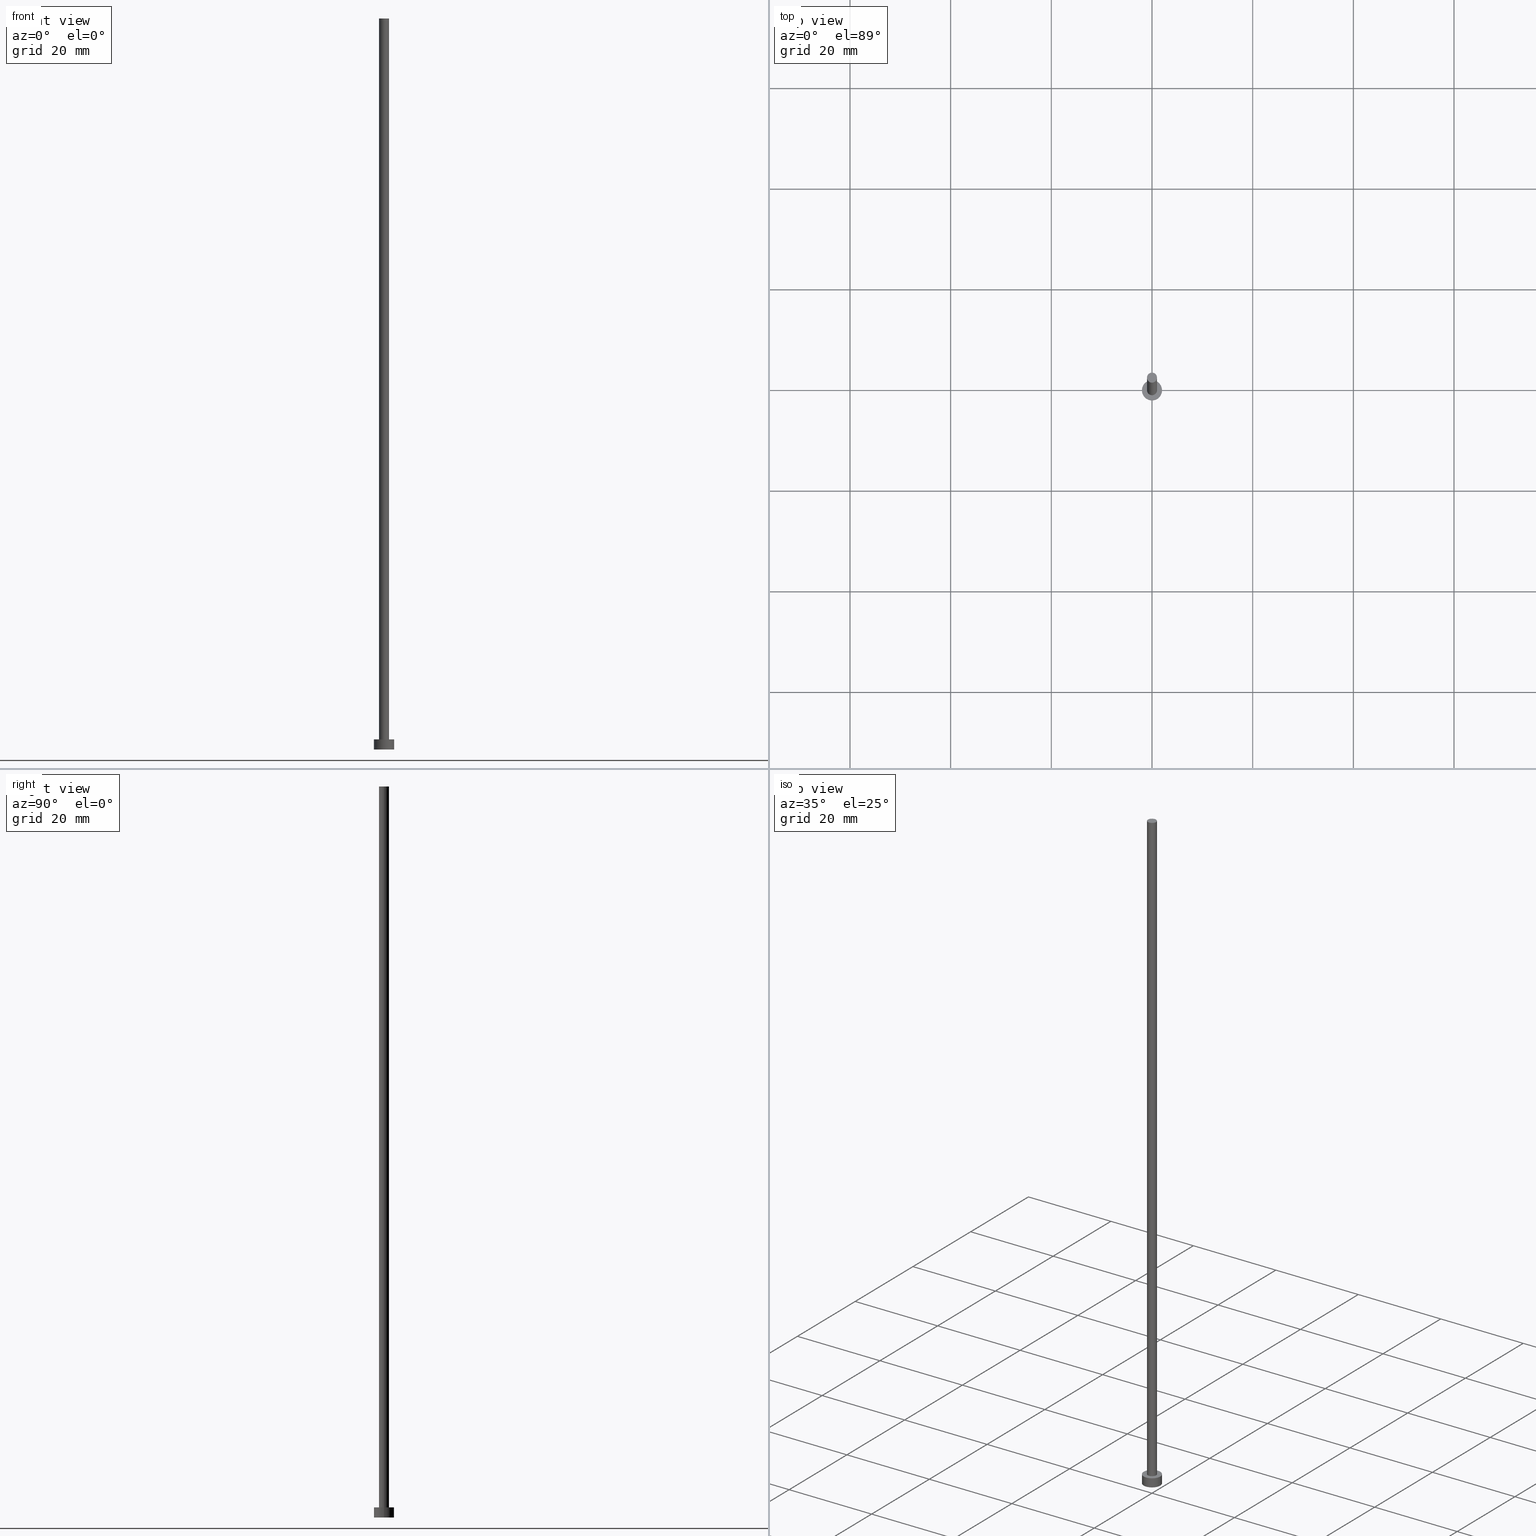
[diagram: canonical four-view strip — front | top / right | iso, engineering-drawing reading convention]
A machine part, canonical four-view strip (front | top / right | iso — engineering-drawing reading convention). The complete STEP part file that produces these views, byte-faithful:
ISO-10303-21;
HEADER;
FILE_DESCRIPTION (( 'STEP AP203' ),
    '1' );
FILE_NAME ('8f4c.STEP',
    '2023-09-27T12:17:00',
    ( '' ),
    ( '' ),
    'SwSTEP 2.0',
    'SolidWorks 2019',
    '' );
FILE_SCHEMA (( 'CONFIG_CONTROL_DESIGN' ));
ENDSEC;

DATA;
#1 = CARTESIAN_POINT ( 'NONE',  ( 0.000000000000000000, 0.000000000000000000, 2.000000000000000000 ) ) ;
#2 = LINE ( 'NONE', #73, #8 ) ;
#3 = COORDINATED_UNIVERSAL_TIME_OFFSET ( 1, 0, .AHEAD. ) ;
#4 =( NAMED_UNIT ( * ) PLANE_ANGLE_UNIT ( ) SI_UNIT ( $, .RADIAN. ) );
#5 = VERTEX_POINT ( 'NONE', #41 ) ;
#6 = COORDINATED_UNIVERSAL_TIME_OFFSET ( 1, 0, .AHEAD. ) ;
#7 = DIRECTION ( 'NONE',  ( 1.000000000000000000, 0.000000000000000000, 0.000000000000000000 ) ) ;
#8 = VECTOR ( 'NONE', #91, 1000.000000000000000 ) ;
#9 = EDGE_LOOP ( 'NONE', ( #39, #111, #224, #11 ) ) ;
#10 = PERSON_AND_ORGANIZATION ( #196, #238 ) ;
#11 = ORIENTED_EDGE ( 'NONE', *, *, #109, .T. ) ;
#12 = VERTEX_POINT ( 'NONE', #102 ) ;
#13 = ADVANCED_FACE ( 'NONE', ( #180 ), #167, .T. ) ;
#14 = DIRECTION ( 'NONE',  ( 0.000000000000000000, 0.000000000000000000, 1.000000000000000000 ) ) ;
#15 = CC_DESIGN_PERSON_AND_ORGANIZATION_ASSIGNMENT ( #63, #229, ( #199 ) ) ;
#16 = AXIS2_PLACEMENT_3D ( 'NONE', #127, #234, #34 ) ;
#17 = CC_DESIGN_PERSON_AND_ORGANIZATION_ASSIGNMENT ( #225, #40, ( #37 ) ) ;
#18 = CIRCLE ( 'NONE', #16, 2.000000000000000000 ) ;
#19 = CC_DESIGN_PERSON_AND_ORGANIZATION_ASSIGNMENT ( #115, #182, ( #87 ) ) ;
#20 = PLANE ( 'NONE',  #32 ) ;
#21 = ORIENTED_EDGE ( 'NONE', *, *, #216, .F. ) ;
#22 = CARTESIAN_POINT ( 'NONE',  ( -2.000000000000000000, 0.000000000000000000, 2.000000000000000000 ) ) ;
#23 = APPROVAL_STATUS ( 'not_yet_approved' ) ;
#24 = VERTEX_POINT ( 'NONE', #183 ) ;
#25 = PRODUCT_RELATED_PRODUCT_CATEGORY ( 'detail', '', ( #87 ) ) ;
#26 = DATE_AND_TIME ( #204, #66 ) ;
#27 = DIRECTION ( 'NONE',  ( 1.000000000000000000, 0.000000000000000000, 0.000000000000000000 ) ) ;
#28 = DIRECTION ( 'NONE',  ( 1.000000000000000000, 0.000000000000000000, 0.000000000000000000 ) ) ;
#29 = ORIENTED_EDGE ( 'NONE', *, *, #216, .T. ) ;
#30 = DIRECTION ( 'NONE',  ( 0.000000000000000000, 0.000000000000000000, 1.000000000000000000 ) ) ;
#31 = AXIS2_PLACEMENT_3D ( 'NONE', #165, #124, #67 ) ;
#32 = AXIS2_PLACEMENT_3D ( 'NONE', #96, #70, #79 ) ;
#33 = DIRECTION ( 'NONE',  ( 1.000000000000000000, 0.000000000000000000, 0.000000000000000000 ) ) ;
#34 = DIRECTION ( 'NONE',  ( 1.000000000000000000, 0.000000000000000000, 0.000000000000000000 ) ) ;
#35 = CYLINDRICAL_SURFACE ( 'NONE', #178, 2.000000000000000000 ) ;
#36 =( GEOMETRIC_REPRESENTATION_CONTEXT ( 3 ) GLOBAL_UNCERTAINTY_ASSIGNED_CONTEXT ( ( #200 ) ) GLOBAL_UNIT_ASSIGNED_CONTEXT ( ( #158, #4, #60 ) ) REPRESENTATION_CONTEXT ( 'NONE', 'WORKASPACE' ) );
#37 = PRODUCT_DEFINITION_FORMATION_WITH_SPECIFIED_SOURCE ( 'LIBOVOLN�', '', #87, .NOT_KNOWN. ) ;
#38 = CALENDAR_DATE ( 2023, 27, 9 ) ;
#39 = ORIENTED_EDGE ( 'NONE', *, *, #140, .F. ) ;
#40 = PERSON_AND_ORGANIZATION_ROLE ( 'design_supplier' ) ;
#41 = CARTESIAN_POINT ( 'NONE',  ( 1.000000000000000000, 1.224646799147352961E-16, 2.000000000000000000 ) ) ;
#42 = APPLICATION_PROTOCOL_DEFINITION ( 'international standard', 'config_control_design', 1994, #208 ) ;
#43 = ORIENTED_EDGE ( 'NONE', *, *, #56, .T. ) ;
#44 = COORDINATED_UNIVERSAL_TIME_OFFSET ( 1, 0, .AHEAD. ) ;
#45 = EDGE_LOOP ( 'NONE', ( #217, #248 ) ) ;
#46 = AXIS2_PLACEMENT_3D ( 'NONE', #231, #205, #188 ) ;
#47 = CARTESIAN_POINT ( 'NONE',  ( 0.000000000000000000, 0.000000000000000000, 145.1999999999999886 ) ) ;
#48 = CARTESIAN_POINT ( 'NONE',  ( 0.000000000000000000, 0.000000000000000000, 2.000000000000000000 ) ) ;
#49 = CIRCLE ( 'NONE', #65, 1.000000000000000000 ) ;
#50 = AXIS2_PLACEMENT_3D ( 'NONE', #241, #141, #28 ) ;
#51 = CARTESIAN_POINT ( 'NONE',  ( 0.000000000000000000, 0.000000000000000000, 0.000000000000000000 ) ) ;
#52 = CC_DESIGN_PERSON_AND_ORGANIZATION_ASSIGNMENT ( #179, #54, ( #189 ) ) ;
#53 = AXIS2_PLACEMENT_3D ( 'NONE', #246, #142, #228 ) ;
#54 = PERSON_AND_ORGANIZATION_ROLE ( 'creator' ) ;
#55 = ORIENTED_EDGE ( 'NONE', *, *, #152, .T. ) ;
#56 = EDGE_CURVE ( 'NONE', #24, #72, #191, .T. ) ;
#57 = AXIS2_PLACEMENT_3D ( 'NONE', #51, #130, #176 ) ;
#58 = PERSON_AND_ORGANIZATION_ROLE ( 'creator' ) ;
#59 = DIRECTION ( 'NONE',  ( -0.000000000000000000, -0.000000000000000000, -1.000000000000000000 ) ) ;
#60 =( NAMED_UNIT ( * ) SI_UNIT ( $, .STERADIAN. ) SOLID_ANGLE_UNIT ( ) );
#61 = EDGE_LOOP ( 'NONE', ( #114, #55 ) ) ;
#62 = EDGE_CURVE ( 'NONE', #12, #72, #82, .T. ) ;
#63 = PERSON_AND_ORGANIZATION ( #196, #238 ) ;
#64 = VERTEX_POINT ( 'NONE', #201 ) ;
#65 = AXIS2_PLACEMENT_3D ( 'NONE', #47, #172, #170 ) ;
#66 = LOCAL_TIME ( 14, 17, 0.000000000000000000, #44 ) ;
#67 = DIRECTION ( 'NONE',  ( 1.000000000000000000, 0.000000000000000000, 0.000000000000000000 ) ) ;
#68 = DIRECTION ( 'NONE',  ( -0.000000000000000000, -0.000000000000000000, -1.000000000000000000 ) ) ;
#69 = DIRECTION ( 'NONE',  ( -0.000000000000000000, -0.000000000000000000, -1.000000000000000000 ) ) ;
#70 = DIRECTION ( 'NONE',  ( 0.000000000000000000, 0.000000000000000000, 1.000000000000000000 ) ) ;
#71 = DESIGN_CONTEXT ( 'detailed design', #208, 'design' ) ;
#72 = VERTEX_POINT ( 'NONE', #243 ) ;
#73 = CARTESIAN_POINT ( 'NONE',  ( -2.000000000000000000, 0.000000000000000000, 2.000000000000000000 ) ) ;
#74 = APPROVAL_PERSON_ORGANIZATION ( #209, #181, #103 ) ;
#75 = APPLICATION_PROTOCOL_DEFINITION ( 'international standard', 'config_control_design', 1994, #194 ) ;
#76 = PERSON_AND_ORGANIZATION ( #196, #238 ) ;
#77 = ORIENTED_EDGE ( 'NONE', *, *, #62, .T. ) ;
#78 = CALENDAR_DATE ( 2023, 27, 9 ) ;
#79 = DIRECTION ( 'NONE',  ( 1.000000000000000000, 0.000000000000000000, -0.000000000000000000 ) ) ;
#80 = FACE_OUTER_BOUND ( 'NONE', #61, .T. ) ;
#81 = APPROVAL_DATE_TIME ( #122, #133 ) ;
#82 = LINE ( 'NONE', #161, #249 ) ;
#83 = ORIENTED_EDGE ( 'NONE', *, *, #227, .T. ) ;
#84 = LOCAL_TIME ( 14, 17, 0.000000000000000000, #3 ) ;
#85 = FACE_OUTER_BOUND ( 'NONE', #123, .T. ) ;
#86 = DIRECTION ( 'NONE',  ( 0.000000000000000000, 0.000000000000000000, 1.000000000000000000 ) ) ;
#87 = PRODUCT ( '8f4c', '8f4c', '', ( #159 ) ) ;
#88 = LOCAL_TIME ( 14, 17, 0.000000000000000000, #117 ) ;
#89 = CYLINDRICAL_SURFACE ( 'NONE', #136, 2.000000000000000000 ) ;
#90 = CC_DESIGN_PERSON_AND_ORGANIZATION_ASSIGNMENT ( #244, #58, ( #37 ) ) ;
#91 = DIRECTION ( 'NONE',  ( -0.000000000000000000, -0.000000000000000000, -1.000000000000000000 ) ) ;
#92 = AXIS2_PLACEMENT_3D ( 'NONE', #48, #14, #211 ) ;
#93 = LOCAL_TIME ( 14, 17, 0.000000000000000000, #6 ) ;
#94 = FACE_OUTER_BOUND ( 'NONE', #97, .T. ) ;
#95 = VERTEX_POINT ( 'NONE', #250 ) ;
#96 = CARTESIAN_POINT ( 'NONE',  ( 0.000000000000000000, 0.000000000000000000, 2.000000000000000000 ) ) ;
#97 = EDGE_LOOP ( 'NONE', ( #153, #99 ) ) ;
#98 = APPROVAL_ROLE ( '' ) ;
#99 = ORIENTED_EDGE ( 'NONE', *, *, #106, .F. ) ;
#100 = CARTESIAN_POINT ( 'NONE',  ( 1.000000000000000000, 1.224646799147352961E-16, 145.1999999999999886 ) ) ;
#101 = CC_DESIGN_APPROVAL ( #133, ( #189 ) ) ;
#102 = CARTESIAN_POINT ( 'NONE',  ( 2.000000000000000000, 2.449293598294706414E-16, 2.000000000000000000 ) ) ;
#103 = APPROVAL_ROLE ( '' ) ;
#104 = ORIENTED_EDGE ( 'NONE', *, *, #109, .F. ) ;
#105 = CARTESIAN_POINT ( 'NONE',  ( 0.000000000000000000, 0.000000000000000000, 145.1999999999999886 ) ) ;
#106 = EDGE_CURVE ( 'NONE', #72, #24, #233, .T. ) ;
#107 = DIRECTION ( 'NONE',  ( -0.000000000000000000, -0.000000000000000000, -1.000000000000000000 ) ) ;
#108 = SHAPE_DEFINITION_REPRESENTATION ( #253, #155 ) ;
#109 = EDGE_CURVE ( 'NONE', #95, #5, #110, .T. ) ;
#110 = CIRCLE ( 'NONE', #129, 1.000000000000000000 ) ;
#111 = ORIENTED_EDGE ( 'NONE', *, *, #174, .F. ) ;
#112 = VECTOR ( 'NONE', #107, 1000.000000000000000 ) ;
#113 = APPROVAL ( #23, 'NEUR�EN�' ) ;
#114 = ORIENTED_EDGE ( 'NONE', *, *, #174, .T. ) ;
#115 = PERSON_AND_ORGANIZATION ( #196, #238 ) ;
#116 = CARTESIAN_POINT ( 'NONE',  ( 1.000000000000000000, 1.224646799147352961E-16, 145.1999999999999886 ) ) ;
#117 = COORDINATED_UNIVERSAL_TIME_OFFSET ( 1, 0, .AHEAD. ) ;
#118 = ORIENTED_EDGE ( 'NONE', *, *, #156, .F. ) ;
#119 = SECURITY_CLASSIFICATION_LEVEL ( 'unclassified' ) ;
#120 = EDGE_LOOP ( 'NONE', ( #104, #198 ) ) ;
#121 = AXIS2_PLACEMENT_3D ( 'NONE', #207, #30, #7 ) ;
#122 = DATE_AND_TIME ( #38, #222 ) ;
#123 = EDGE_LOOP ( 'NONE', ( #237, #132, #83, #245 ) ) ;
#124 = DIRECTION ( 'NONE',  ( 0.000000000000000000, 0.000000000000000000, 1.000000000000000000 ) ) ;
#125 = APPROVAL_DATE_TIME ( #126, #181 ) ;
#126 = DATE_AND_TIME ( #219, #84 ) ;
#127 = CARTESIAN_POINT ( 'NONE',  ( 0.000000000000000000, 0.000000000000000000, 2.000000000000000000 ) ) ;
#128 = FACE_OUTER_BOUND ( 'NONE', #154, .T. ) ;
#129 = AXIS2_PLACEMENT_3D ( 'NONE', #226, #210, #27 ) ;
#130 = DIRECTION ( 'NONE',  ( 0.000000000000000000, 0.000000000000000000, 1.000000000000000000 ) ) ;
#131 = ORIENTED_EDGE ( 'NONE', *, *, #62, .F. ) ;
#132 = ORIENTED_EDGE ( 'NONE', *, *, #140, .T. ) ;
#133 = APPROVAL ( #242, 'NEUR�EN�' ) ;
#134 = DIRECTION ( 'NONE',  ( 1.000000000000000000, 0.000000000000000000, 0.000000000000000000 ) ) ;
#135 = APPROVAL_STATUS ( 'not_yet_approved' ) ;
#136 = AXIS2_PLACEMENT_3D ( 'NONE', #252, #69, #148 ) ;
#137 = VERTEX_POINT ( 'NONE', #100 ) ;
#138 = APPROVAL_DATE_TIME ( #247, #113 ) ;
#139 = ORIENTED_EDGE ( 'NONE', *, *, #214, .F. ) ;
#140 = EDGE_CURVE ( 'NONE', #137, #5, #186, .T. ) ;
#141 = DIRECTION ( 'NONE',  ( 0.000000000000000000, 0.000000000000000000, 1.000000000000000000 ) ) ;
#142 = DIRECTION ( 'NONE',  ( 0.000000000000000000, 0.000000000000000000, 1.000000000000000000 ) ) ;
#143 = VERTEX_POINT ( 'NONE', #22 ) ;
#144 = ADVANCED_FACE ( 'NONE', ( #80 ), #163, .T. ) ;
#145 = LINE ( 'NONE', #173, #112 ) ;
#146 = AXIS2_PLACEMENT_3D ( 'NONE', #254, #151, #134 ) ;
#147 = EDGE_CURVE ( 'NONE', #64, #95, #145, .T. ) ;
#148 = DIRECTION ( 'NONE',  ( -1.000000000000000000, 0.000000000000000000, 0.000000000000000000 ) ) ;
#149 = CLOSED_SHELL ( 'NONE', ( #162, #195, #221, #240, #235, #13, #144 ) ) ;
#150 = CC_DESIGN_APPROVAL ( #181, ( #199 ) ) ;
#151 = DIRECTION ( 'NONE',  ( 0.000000000000000000, 0.000000000000000000, 1.000000000000000000 ) ) ;
#152 = EDGE_CURVE ( 'NONE', #137, #64, #166, .T. ) ;
#153 = ORIENTED_EDGE ( 'NONE', *, *, #56, .F. ) ;
#154 = EDGE_LOOP ( 'NONE', ( #118, #77, #160, #21 ) ) ;
#155 = ADVANCED_BREP_SHAPE_REPRESENTATION ( '8f4c', ( #190, #50 ), #36 ) ;
#156 = EDGE_CURVE ( 'NONE', #12, #143, #184, .T. ) ;
#157 = DIRECTION ( 'NONE',  ( -0.000000000000000000, -0.000000000000000000, -1.000000000000000000 ) ) ;
#158 =( LENGTH_UNIT ( ) NAMED_UNIT ( * ) SI_UNIT ( .MILLI., .METRE. ) );
#159 = MECHANICAL_CONTEXT ( 'NONE', #194, 'mechanical' ) ;
#160 = ORIENTED_EDGE ( 'NONE', *, *, #106, .T. ) ;
#161 = CARTESIAN_POINT ( 'NONE',  ( 2.000000000000000000, 2.449293598294706414E-16, 2.000000000000000000 ) ) ;
#162 = ADVANCED_FACE ( 'NONE', ( #85 ), #169, .T. ) ;
#163 = PLANE ( 'NONE',  #53 ) ;
#164 = CALENDAR_DATE ( 2023, 27, 9 ) ;
#165 = CARTESIAN_POINT ( 'NONE',  ( 0.000000000000000000, 0.000000000000000000, 0.000000000000000000 ) ) ;
#166 = CIRCLE ( 'NONE', #236, 1.000000000000000000 ) ;
#167 = CYLINDRICAL_SURFACE ( 'NONE', #46, 1.000000000000000000 ) ;
#168 = CC_DESIGN_APPROVAL ( #113, ( #37 ) ) ;
#169 = CYLINDRICAL_SURFACE ( 'NONE', #171, 1.000000000000000000 ) ;
#170 = DIRECTION ( 'NONE',  ( 1.000000000000000000, 0.000000000000000000, 0.000000000000000000 ) ) ;
#171 = AXIS2_PLACEMENT_3D ( 'NONE', #251, #68, #212 ) ;
#172 = DIRECTION ( 'NONE',  ( 0.000000000000000000, 0.000000000000000000, 1.000000000000000000 ) ) ;
#173 = CARTESIAN_POINT ( 'NONE',  ( -1.000000000000000000, 0.000000000000000000, 145.1999999999999886 ) ) ;
#174 = EDGE_CURVE ( 'NONE', #64, #137, #49, .T. ) ;
#175 = VECTOR ( 'NONE', #220, 1000.000000000000000 ) ;
#176 = DIRECTION ( 'NONE',  ( 1.000000000000000000, 0.000000000000000000, -0.000000000000000000 ) ) ;
#177 = CC_DESIGN_DATE_AND_TIME_ASSIGNMENT ( #202, #206, ( #189 ) ) ;
#178 = AXIS2_PLACEMENT_3D ( 'NONE', #1, #157, #239 ) ;
#179 = PERSON_AND_ORGANIZATION ( #196, #238 ) ;
#180 = FACE_OUTER_BOUND ( 'NONE', #9, .T. ) ;
#181 = APPROVAL ( #135, 'NEUR�EN�' ) ;
#182 = PERSON_AND_ORGANIZATION_ROLE ( 'design_owner' ) ;
#183 = CARTESIAN_POINT ( 'NONE',  ( -2.000000000000000000, 0.000000000000000000, 0.000000000000000000 ) ) ;
#184 = CIRCLE ( 'NONE', #92, 2.000000000000000000 ) ;
#185 = DATE_TIME_ROLE ( 'classification_date' ) ;
#186 = LINE ( 'NONE', #116, #175 ) ;
#187 = COORDINATED_UNIVERSAL_TIME_OFFSET ( 1, 0, .AHEAD. ) ;
#188 = DIRECTION ( 'NONE',  ( -1.000000000000000000, 0.000000000000000000, 0.000000000000000000 ) ) ;
#189 = PRODUCT_DEFINITION ( 'NEZN�M�', '', #37, #71 ) ;
#190 = MANIFOLD_SOLID_BREP ( 'P�idat vysunut�m3', #149 ) ;
#191 = CIRCLE ( 'NONE', #121, 2.000000000000000000 ) ;
#192 = CC_DESIGN_SECURITY_CLASSIFICATION ( #199, ( #37 ) ) ;
#193 = CIRCLE ( 'NONE', #146, 1.000000000000000000 ) ;
#194 = APPLICATION_CONTEXT ( 'configuration controlled 3d designs of mechanical parts and assemblies' ) ;
#195 = ADVANCED_FACE ( 'NONE', ( #128 ), #89, .T. ) ;
#196 = PERSON ( 'NEUR�EN�', 'NEUR�EN�', 'NEUR�EN�', ('NEUR�EN�'), ('NEUR�EN�'), ('NEUR�EN�') ) ;
#197 = FACE_OUTER_BOUND ( 'NONE', #45, .T. ) ;
#198 = ORIENTED_EDGE ( 'NONE', *, *, #227, .F. ) ;
#199 = SECURITY_CLASSIFICATION ( '', '', #119 ) ;
#200 = UNCERTAINTY_MEASURE_WITH_UNIT (LENGTH_MEASURE( 1.000000000000000082E-05 ), #158, 'distance_accuracy_value', 'NONE');
#201 = CARTESIAN_POINT ( 'NONE',  ( -1.000000000000000000, 0.000000000000000000, 145.1999999999999886 ) ) ;
#202 = DATE_AND_TIME ( #164, #88 ) ;
#203 = EDGE_LOOP ( 'NONE', ( #131, #139, #29, #43 ) ) ;
#204 = CALENDAR_DATE ( 2023, 27, 9 ) ;
#205 = DIRECTION ( 'NONE',  ( -0.000000000000000000, -0.000000000000000000, -1.000000000000000000 ) ) ;
#206 = DATE_TIME_ROLE ( 'creation_date' ) ;
#207 = CARTESIAN_POINT ( 'NONE',  ( 0.000000000000000000, 0.000000000000000000, 0.000000000000000000 ) ) ;
#208 = APPLICATION_CONTEXT ( 'configuration controlled 3d designs of mechanical parts and assemblies' ) ;
#209 = PERSON_AND_ORGANIZATION ( #196, #238 ) ;
#210 = DIRECTION ( 'NONE',  ( 0.000000000000000000, 0.000000000000000000, 1.000000000000000000 ) ) ;
#211 = DIRECTION ( 'NONE',  ( 1.000000000000000000, 0.000000000000000000, 0.000000000000000000 ) ) ;
#212 = DIRECTION ( 'NONE',  ( -1.000000000000000000, 0.000000000000000000, 0.000000000000000000 ) ) ;
#213 = APPROVAL_PERSON_ORGANIZATION ( #76, #113, #98 ) ;
#214 = EDGE_CURVE ( 'NONE', #143, #12, #18, .T. ) ;
#215 = FACE_OUTER_BOUND ( 'NONE', #203, .T. ) ;
#216 = EDGE_CURVE ( 'NONE', #143, #24, #2, .T. ) ;
#217 = ORIENTED_EDGE ( 'NONE', *, *, #214, .T. ) ;
#218 = PLANE ( 'NONE',  #57 ) ;
#219 = CALENDAR_DATE ( 2023, 27, 9 ) ;
#220 = DIRECTION ( 'NONE',  ( -0.000000000000000000, -0.000000000000000000, -1.000000000000000000 ) ) ;
#221 = ADVANCED_FACE ( 'NONE', ( #215 ), #35, .T. ) ;
#222 = LOCAL_TIME ( 14, 17, 0.000000000000000000, #187 ) ;
#223 = APPROVAL_ROLE ( '' ) ;
#224 = ORIENTED_EDGE ( 'NONE', *, *, #147, .T. ) ;
#225 = PERSON_AND_ORGANIZATION ( #196, #238 ) ;
#226 = CARTESIAN_POINT ( 'NONE',  ( 0.000000000000000000, 0.000000000000000000, 2.000000000000000000 ) ) ;
#227 = EDGE_CURVE ( 'NONE', #5, #95, #193, .T. ) ;
#228 = DIRECTION ( 'NONE',  ( 1.000000000000000000, 0.000000000000000000, -0.000000000000000000 ) ) ;
#229 = PERSON_AND_ORGANIZATION_ROLE ( 'classification_officer' ) ;
#230 = APPROVAL_PERSON_ORGANIZATION ( #10, #133, #223 ) ;
#231 = CARTESIAN_POINT ( 'NONE',  ( 0.000000000000000000, 0.000000000000000000, 145.1999999999999886 ) ) ;
#232 = CC_DESIGN_DATE_AND_TIME_ASSIGNMENT ( #26, #185, ( #199 ) ) ;
#233 = CIRCLE ( 'NONE', #31, 2.000000000000000000 ) ;
#234 = DIRECTION ( 'NONE',  ( 0.000000000000000000, 0.000000000000000000, 1.000000000000000000 ) ) ;
#235 = ADVANCED_FACE ( 'NONE', ( #94 ), #218, .F. ) ;
#236 = AXIS2_PLACEMENT_3D ( 'NONE', #105, #86, #33 ) ;
#237 = ORIENTED_EDGE ( 'NONE', *, *, #152, .F. ) ;
#238 = ORGANIZATION ( 'NEUR�EN�', 'NEUR�EN�', '' ) ;
#239 = DIRECTION ( 'NONE',  ( -1.000000000000000000, 0.000000000000000000, 0.000000000000000000 ) ) ;
#240 = ADVANCED_FACE ( 'NONE', ( #255, #197 ), #20, .T. ) ;
#241 = CARTESIAN_POINT ( 'NONE',  ( 0.000000000000000000, 0.000000000000000000, 0.000000000000000000 ) ) ;
#242 = APPROVAL_STATUS ( 'not_yet_approved' ) ;
#243 = CARTESIAN_POINT ( 'NONE',  ( 2.000000000000000000, 2.449293598294706414E-16, 0.000000000000000000 ) ) ;
#244 = PERSON_AND_ORGANIZATION ( #196, #238 ) ;
#245 = ORIENTED_EDGE ( 'NONE', *, *, #147, .F. ) ;
#246 = CARTESIAN_POINT ( 'NONE',  ( 0.000000000000000000, 0.000000000000000000, 145.1999999999999886 ) ) ;
#247 = DATE_AND_TIME ( #78, #93 ) ;
#248 = ORIENTED_EDGE ( 'NONE', *, *, #156, .T. ) ;
#249 = VECTOR ( 'NONE', #59, 1000.000000000000000 ) ;
#250 = CARTESIAN_POINT ( 'NONE',  ( -1.000000000000000000, 0.000000000000000000, 2.000000000000000000 ) ) ;
#251 = CARTESIAN_POINT ( 'NONE',  ( 0.000000000000000000, 0.000000000000000000, 145.1999999999999886 ) ) ;
#252 = CARTESIAN_POINT ( 'NONE',  ( 0.000000000000000000, 0.000000000000000000, 2.000000000000000000 ) ) ;
#253 = PRODUCT_DEFINITION_SHAPE ( 'NONE', 'NONE',  #189 ) ;
#254 = CARTESIAN_POINT ( 'NONE',  ( 0.000000000000000000, 0.000000000000000000, 2.000000000000000000 ) ) ;
#255 = FACE_BOUND ( 'NONE', #120, .T. ) ;
ENDSEC;
END-ISO-10303-21;
